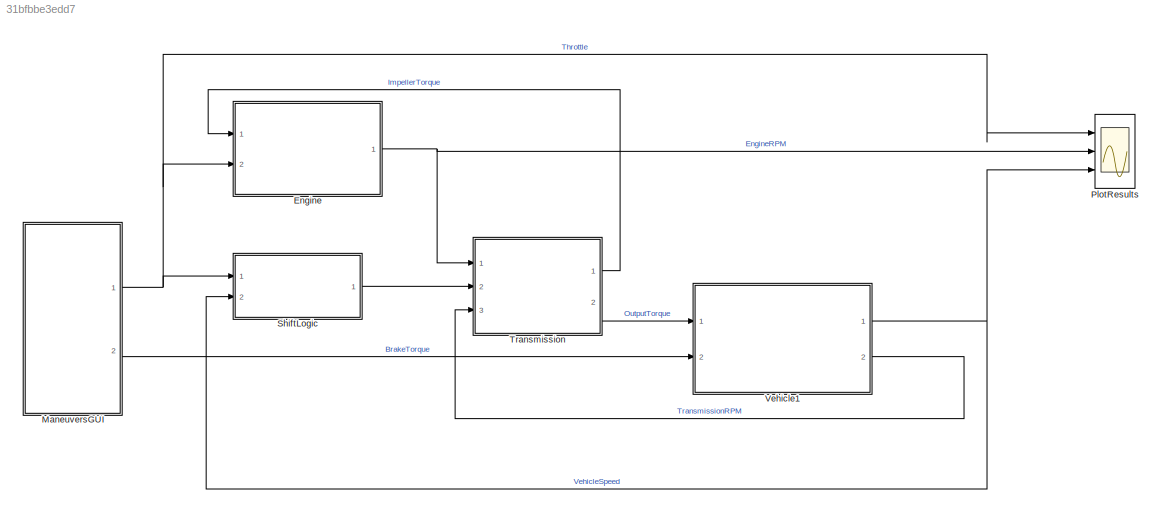
MODEL slx_31bfbbe3edd7
KIND model
CONFIG AbsTol = auto
CONFIG EnableMultiTasking = off
CONFIG FixedStep = auto
CONFIG MaxStep = auto
CONFIG MinStep = auto
CONFIG RelTol = 1e-3
CONFIG SampleTimeConstraint = Unconstrained
CONFIG SolverName = ode5
CONFIG StartTime = 0.0
CONFIG StopTime = 30
WORKSPACE source: mxarray member
WORKSPACE CONVERTER_DATA = [0 0.1 0.2 0.3 0.4 0.5 0.6 0.7 0.8 0.81 0.82 0.83 ... (63 elements, 21x3)]
WORKSPACE DOWN_TABLE = [0 0 0 0 0 0 5 5 5 5 30 30 ... (24 elements, 6x4)]
WORKSPACE DOWN_TH_BP = [0 5 40 50 90 100]
WORKSPACE EMAP = [-40 215 245 264 264 267 267 267 267 267 -44 117 ... (110 elements, 10x11)]
WORKSPACE Iei = 0.0219914882836
WORKSPACE NE_VEC = [800 1200 1600 2000 2400 2800 3200 3600 4000 4400 4800]
WORKSPACE TH_VEC = [0 20 30 40 50 60 70 80 90 100]
WORKSPACE TWAIT = 2
WORKSPACE UP_TABLE = [10 10 15 23 40 40 30 30 30 41 70 70 ... (24 elements, 6x4)]
WORKSPACE UP_TH_BP = [0 25 35 50 90 100]
WORKSPACE VEHICLE_DATA = [3.23 40 0.02 1 12.0941478573 0]
BLOCK [SubSystem] Engine
  Ports = [2, 1]
  RequestExecContextInheritance = off
BLOCK [Sum] Engine/Add
  IconShape = rectangular
  Inputs = -+
  Ports = [2, 1]
BLOCK [Lookup_n-D] Engine/Engine Torque
  BreakpointsForDimension1 = TH_VEC
  BreakpointsForDimension2 = NE_VEC
  InputPortMap = u0,u1
  Ports = [2, 1]
  Table = EMAP
BLOCK [Gain] Engine/EnginePlusImpellerInertia
  Gain = 1/Iei
BLOCK [Integrator] Engine/Integrator
  InitialCondition = 1000
  LimitOutput = on
  LowerSaturationLimit = 600
  Ports = [1, 1]
  UpperSaturationLimit = 6000
  ZeroCross = off
BLOCK [Outport] Engine/Ne
BLOCK [Inport] Engine/Throttle
  Port = 2
BLOCK [Inport] Engine/Ti
BLOCK [SubSystem] ManeuversGUI
  ClipboardFcn = sigbuilder_block('clipboard');
  CloseFcn = sigbuilder_block('close');
  ContinueFcn = sigbuilder_block('continue');
  CopyFcn = sigbuilder_block('copy');
  DeleteFcn = sigbuilder_block('delete');
  LoadFcn = sigbuilder_block('load');
  MaskHideContents = on
  ModelCloseFcn = sigbuilder_block('modelClose');
  NameChangeFcn = sigbuilder_block('namechange');
  OpenFcn = sigbuilder_block('open',[0 30 1024.5 488.25 ]);
  PauseFcn = sigbuilder_block('pause');
  Ports = [0, 2]
  PreSaveFcn = sigbuilder_block('preSave');
  RequestExecContextInheritance = off
  StartFcn = sigbuilder_block('start');
  StopFcn = sigbuilder_block('stop');
  Tag = STV Subsys
BLOCK [Outport] ManeuversGUI/Brake
  Port = 2
  Tag = STV Outport
BLOCK [Demux] ManeuversGUI/Demux
  DisplayOption = none
  Outputs = 2
  Ports = [1, 2]
  Tag = STV Demux
BLOCK [FromWorkspace] ManeuversGUI/FromWs
  Tag = STV FromWs
  VariableName = tuvar
BLOCK [Outport] ManeuversGUI/Throttle
  Tag = STV Outport
BLOCK [Scope] PlotResults
  Floating = off
  NumInputPorts = 3
  Ports = [3]
  ScopeSpecificationString = Simulink.scopes.TimeScopeBlockCfg('CurrentConfiguration', extmgr.ConfigurationSet(extmgr.Configuration('Core','General UI',true),extmgr.Configuration('Core','Source UI',true),extmgr.Configuration('Sources','WiredSimulink',true),extmgr.Configuration('Visuals','Time Domain',true,'SerializedDisplays',{struct('MinYLimReal','-6.25','MaxYLimReal','56.25','YLabelReal','','MinYLimMag','0.00000','MaxYLimMa...<+2745ch>
BLOCK [SubSystem] ShiftLogic
  ErrorFcn = Stateflow.Translate.translate
  PermitHierarchicalResolution = ExplicitOnly
  Ports = [2, 1]
  RequestExecContextInheritance = off
  SFBlockType = Chart
  TreatAsAtomicUnit = on
BLOCK [Demux] ShiftLogic/ Demux 
  Outputs = 1
  Ports = [1, 1]
BLOCK [S-Function] ShiftLogic/ SFunction 
  EnableBusSupport = on
  FunctionName = sf_sfun
  Parameters = TWAIT
  PortCounts = [4 4]
  Ports = [4, 4]
  SFcnIsStateOwnerBlock = off
  SFunctionDeploymentMode = off
  Tag = Stateflow S-Function 1
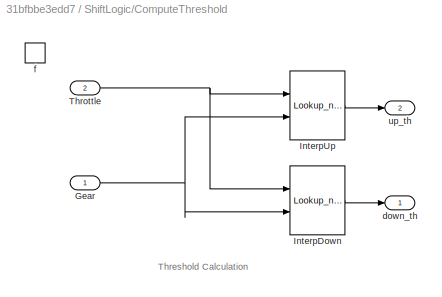
BLOCK [SubSystem] ShiftLogic/ComputeThreshold
  Ports = [2, 2, 0, 1]
  PreDeleteFcn = Stateflow.SLINSF.SimulinkMan.removePreDeleteFcn
  RequestExecContextInheritance = off
  UndoDeleteFcn = Stateflow.SLINSF.SimulinkMan.restorePreDeleteFcn
BLOCK [Inport] ShiftLogic/ComputeThreshold/Gear
BLOCK [Lookup_n-D] ShiftLogic/ComputeThreshold/InterpDown
  BreakpointsForDimension1 = DOWN_TH_BP
  BreakpointsForDimension2 = [1:4]
  InputPortMap = u0,u1
  InputSameDT = off
  LockScale = on
  OutDataTypeStr = double
  Ports = [2, 1]
  Table = DOWN_TABLE
BLOCK [Lookup_n-D] ShiftLogic/ComputeThreshold/InterpUp
  BreakpointsForDimension1 = UP_TH_BP
  BreakpointsForDimension2 = [1:4]
  InputPortMap = u0,u1
  InputSameDT = off
  LockScale = on
  OutDataTypeStr = double
  Ports = [2, 1]
  Table = UP_TABLE
BLOCK [Inport] ShiftLogic/ComputeThreshold/Throttle
  Port = 2
BLOCK [Outport] ShiftLogic/ComputeThreshold/down_th
  InitialOutput = 0
  VectorParamsAs1DForOutWhenUnconnected = off
BLOCK [TriggerPort] ShiftLogic/ComputeThreshold/f
  CopyFcn = Stateflow.SLINSF.SimulinkMan.removeBlockPreDeleteFcn
  Ports = []
  PreDeleteFcn = Stateflow.SLINSF.SimulinkMan.unsafePredeleteFcn
  StatesWhenEnabling = held
  TriggerType = function-call
  VariantControl = (inherit)
BLOCK [Outport] ShiftLogic/ComputeThreshold/up_th
  InitialOutput = 0
  Port = 2
  VectorParamsAs1DForOutWhenUnconnected = off
BLOCK [Outport] ShiftLogic/Gear
  VectorParamsAs1DForOutWhenUnconnected = off
BLOCK [Inport] ShiftLogic/Throttle
BLOCK [Inport] ShiftLogic/VehicleSpeed
  Port = 2
BLOCK [SubSystem] Transmission
  Ports = [3, 2]
  RequestExecContextInheritance = off
BLOCK [Inport] Transmission/Gear
  Port = 2
BLOCK [Inport] Transmission/Ne
BLOCK [Inport] Transmission/Nout
  Port = 3
BLOCK [Outport] Transmission/Ti
BLOCK [SubSystem] Transmission/TorqueConverter1
  Ports = [2, 2]
  RequestExecContextInheritance = off
  ShowPortLabels = none
BLOCK [Lookup_n-D] Transmission/TorqueConverter1/FactorK
  BreakpointsForDimension1 = speedratio
  InputPortMap = u0
  NumberOfTableDimensions = 1
  Ports = [1, 1]
  SaturateOnIntegerOverflow = on
  Table = Kfactor
BLOCK [Fcn] Transmission/TorqueConverter1/Impeller
  Expr = u^2
BLOCK [Inport] Transmission/TorqueConverter1/Ne
BLOCK [Inport] Transmission/TorqueConverter1/Nin
  Port = 2
BLOCK [Product] Transmission/TorqueConverter1/Quotient
  InputSameDT = on
  Inputs = */
  OutDataTypeStr = Inherit: Same as first input
  Ports = [2, 1]
  SaturateOnIntegerOverflow = on
BLOCK [Product] Transmission/TorqueConverter1/SpeedRatio
  InputSameDT = on
  Inputs = */
  OutDataTypeStr = Inherit: Same as first input
  Ports = [2, 1]
  SaturateOnIntegerOverflow = on
BLOCK [Outport] Transmission/TorqueConverter1/Ti
  VectorParamsAs1DForOutWhenUnconnected = off
BLOCK [Lookup_n-D] Transmission/TorqueConverter1/TorqueRatio
  BreakpointsForDimension1 = speedratio
  InputPortMap = u0
  NumberOfTableDimensions = 1
  Ports = [1, 1]
  SaturateOnIntegerOverflow = on
  Table = Torkratio
BLOCK [Outport] Transmission/TorqueConverter1/Tt
  Port = 2
  VectorParamsAs1DForOutWhenUnconnected = off
BLOCK [Product] Transmission/TorqueConverter1/Turbine
  InputSameDT = on
  OutDataTypeStr = Inherit: Same as first input
  Ports = [2, 1]
  SaturateOnIntegerOverflow = on
BLOCK [Outport] Transmission/Tout
  Port = 2
BLOCK [SubSystem] Transmission/TransmissionRatio
  Ports = [3, 2]
  RequestExecContextInheritance = off
BLOCK [Lookup_n-D] Transmission/TransmissionRatio/1-D Lookup Table
  BreakpointsForDimension1 = [1 2 3 4]
  ExtrapMethod = Clip
  InputPortMap = u0
  NumberOfTableDimensions = 1
  Ports = [1, 1]
  SaturateOnIntegerOverflow = on
  Table = [2.393 1.450 1.000 0.677]
BLOCK [Inport] Transmission/TransmissionRatio/Gear
  Port = 2
BLOCK [Outport] Transmission/TransmissionRatio/Nin
  Port = 2
BLOCK [Inport] Transmission/TransmissionRatio/Nout
  Port = 3
BLOCK [Product] Transmission/TransmissionRatio/Product
  Ports = [2, 1]
  SaturateOnIntegerOverflow = on
BLOCK [Product] Transmission/TransmissionRatio/Product1
  Ports = [2, 1]
  SaturateOnIntegerOverflow = on
BLOCK [Inport] Transmission/TransmissionRatio/Tin
BLOCK [Outport] Transmission/TransmissionRatio/Tout
  LockScale = on
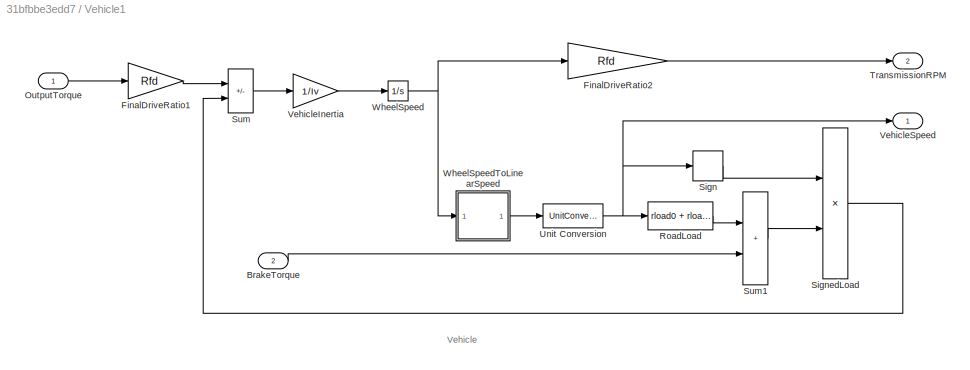
BLOCK [SubSystem] Vehicle1
  Ports = [2, 2]
  RequestExecContextInheritance = off
  ShowPortLabels = none
BLOCK [Inport] Vehicle1/BrakeTorque
  Port = 2
  Unit = ft*lbf@torque
BLOCK [Gain] Vehicle1/FinalDriveRatio1
  Gain = Rfd
  OutDataTypeStr = Inherit: Same as input
  ParamDataTypeStr = Inherit: Same as input
  SaturateOnIntegerOverflow = on
BLOCK [Gain] Vehicle1/FinalDriveRatio2
  Gain = Rfd
  OutDataTypeStr = Inherit: Same as input
  ParamDataTypeStr = Inherit: Same as input
  SaturateOnIntegerOverflow = on
BLOCK [Inport] Vehicle1/OutputTorque
  Unit = ft*lbf@torque
BLOCK [Fcn] Vehicle1/RoadLoad
  Expr = rload0 + rload2*u^2
BLOCK [Signum] Vehicle1/Sign
BLOCK [Product] Vehicle1/SignedLoad
  InputSameDT = on
  OutDataTypeStr = Inherit: Same as first input
  Ports = [2, 1]
  SaturateOnIntegerOverflow = on
BLOCK [Sum] Vehicle1/Sum
  IconShape = rectangular
  InputSameDT = on
  Inputs = +-
  OutDataTypeStr = Inherit: Same as first input
  Ports = [2, 1]
  SaturateOnIntegerOverflow = on
BLOCK [Sum] Vehicle1/Sum1
  IconShape = rectangular
  InputSameDT = on
  OutDataTypeStr = Inherit: Same as first input
  Ports = [2, 1]
  SaturateOnIntegerOverflow = on
BLOCK [Outport] Vehicle1/TransmissionRPM
  Port = 2
  Unit = rpm
  VectorParamsAs1DForOutWhenUnconnected = off
BLOCK [UnitConversion] Vehicle1/Unit Conversion
BLOCK [Gain] Vehicle1/VehicleInertia
  Gain = 1/Iv
  OutDataTypeStr = Inherit: Same as input
  ParamDataTypeStr = Inherit: Same as input
  SaturateOnIntegerOverflow = on
BLOCK [Outport] Vehicle1/VehicleSpeed
  Unit = mph
  VectorParamsAs1DForOutWhenUnconnected = off
BLOCK [Integrator] Vehicle1/WheelSpeed
  InitialCondition = N20/Rfd
  Ports = [1, 1]
  ZeroCross = off
BLOCK [SubSystem] Vehicle1/WheelSpeedToLinearSpeed
  Ports = [1, 1]
  RequestExecContextInheritance = off
BLOCK [Outport] Vehicle1/WheelSpeedToLinearSpeed/LS
  Unit = ft/min
  VectorParamsAs1DForOutWhenUnconnected = off
BLOCK [Gain] Vehicle1/WheelSpeedToLinearSpeed/ToLinearSpeed
  Gain = 2*pi*Rw
  OutDataTypeStr = Inherit: Same as input
  ParamDataTypeStr = Inherit: Same as input
  SaturateOnIntegerOverflow = on
BLOCK [Inport] Vehicle1/WheelSpeedToLinearSpeed/WS
  Unit = rpm
ANNOTATION Engine: Engine
ANNOTATION ShiftLogic/ComputeThreshold: Threshold Calculation
ANNOTATION Transmission: Transmission
ANNOTATION Transmission: Torque Converter
ANNOTATION Transmission/TorqueConverter1: Torque Converter
ANNOTATION Transmission/TransmissionRatio: Transmission Gear Ratio
ANNOTATION Vehicle1: Vehicle
LINE Engine/Add:1 -> Engine/EnginePlusImpellerInertia:1
LINE Engine/Engine Torque:1 -> Engine/Add:2
LINE Engine/EnginePlusImpellerInertia:1 -> Engine/Integrator:1
NET Engine/Integrator:1 -> Engine/Engine Torque:2, Engine/Ne:1
LINE Engine/Throttle:1 -> Engine/Engine Torque:1
LINE Engine/Ti:1 -> Engine/Add:1
NET Engine:1 -> PlotResults:2, Transmission:1
NET ManeuversGUI:1 -> Engine:2, PlotResults:1, ShiftLogic:1
LINE ManeuversGUI:2 -> Vehicle1:2
LINE ShiftLogic:1 -> Transmission:2
LINE Transmission/Gear:1 -> Transmission/TransmissionRatio:2
LINE Transmission/Ne:1 -> Transmission/TorqueConverter1:1
LINE Transmission/Nout:1 -> Transmission/TransmissionRatio:3
LINE Transmission/TorqueConverter1/FactorK:1 -> Transmission/TorqueConverter1/Quotient:2
NET Transmission/TorqueConverter1/Impeller:1 -> Transmission/TorqueConverter1/Ti:1, Transmission/TorqueConverter1/Turbine:1
NET Transmission/TorqueConverter1/Ne:1 -> Transmission/TorqueConverter1/Quotient:1, Transmission/TorqueConverter1/SpeedRatio:2
LINE Transmission/TorqueConverter1/Nin:1 -> Transmission/TorqueConverter1/SpeedRatio:1
LINE Transmission/TorqueConverter1/Quotient:1 -> Transmission/TorqueConverter1/Impeller:1
NET Transmission/TorqueConverter1/SpeedRatio:1 -> Transmission/TorqueConverter1/FactorK:1, Transmission/TorqueConverter1/TorqueRatio:1
LINE Transmission/TorqueConverter1/TorqueRatio:1 -> Transmission/TorqueConverter1/Turbine:2
LINE Transmission/TorqueConverter1/Turbine:1 -> Transmission/TorqueConverter1/Tt:1
LINE Transmission/TorqueConverter1:1 -> Transmission/Ti:1
LINE Transmission/TorqueConverter1:2 -> Transmission/TransmissionRatio:1
NET Transmission/TransmissionRatio/1-D Lookup Table:1 -> Transmission/TransmissionRatio/Product1:1, Transmission/TransmissionRatio/Product:2
LINE Transmission/TransmissionRatio/Gear:1 -> Transmission/TransmissionRatio/1-D Lookup Table:1
LINE Transmission/TransmissionRatio/Nout:1 -> Transmission/TransmissionRatio/Product1:2
LINE Transmission/TransmissionRatio/Product1:1 -> Transmission/TransmissionRatio/Nin:1
LINE Transmission/TransmissionRatio/Product:1 -> Transmission/TransmissionRatio/Tout:1
LINE Transmission/TransmissionRatio/Tin:1 -> Transmission/TransmissionRatio/Product:1
LINE Transmission/TransmissionRatio:1 -> Transmission/Tout:1
LINE Transmission/TransmissionRatio:2 -> Transmission/TorqueConverter1:2
LINE Transmission:1 -> Engine:1
LINE Transmission:2 -> Vehicle1:1
LINE Vehicle1/BrakeTorque:1 -> Vehicle1/Sum1:2
LINE Vehicle1/FinalDriveRatio1:1 -> Vehicle1/Sum:1
LINE Vehicle1/FinalDriveRatio2:1 -> Vehicle1/TransmissionRPM:1
LINE Vehicle1/OutputTorque:1 -> Vehicle1/FinalDriveRatio1:1
LINE Vehicle1/RoadLoad:1 -> Vehicle1/Sum1:1
LINE Vehicle1/Sign:1 -> Vehicle1/SignedLoad:1
LINE Vehicle1/SignedLoad:1 -> Vehicle1/Sum:2
LINE Vehicle1/Sum1:1 -> Vehicle1/SignedLoad:2
LINE Vehicle1/Sum:1 -> Vehicle1/VehicleInertia:1
NET Vehicle1/Unit Conversion:1 -> Vehicle1/RoadLoad:1, Vehicle1/Sign:1, Vehicle1/VehicleSpeed:1
LINE Vehicle1/VehicleInertia:1 -> Vehicle1/WheelSpeed:1
NET Vehicle1/WheelSpeed:1 -> Vehicle1/FinalDriveRatio2:1, Vehicle1/WheelSpeedToLinearSpeed:1
LINE Vehicle1/WheelSpeedToLinearSpeed/ToLinearSpeed:1 -> Vehicle1/WheelSpeedToLinearSpeed/LS:1
LINE Vehicle1/WheelSpeedToLinearSpeed/WS:1 -> Vehicle1/WheelSpeedToLinearSpeed/ToLinearSpeed:1
LINE Vehicle1/WheelSpeedToLinearSpeed:1 -> Vehicle1/Unit Conversion:1
NET Vehicle1:1 -> PlotResults:3, ShiftLogic:2
LINE Vehicle1:2 -> Transmission:3
note: NET lines group one-source signal fan-out (src -> all destinations, sorted); 1:1 wires keep LINE
CHART ShiftLogic states=10 transitions=14
  STATE_LABEL 'gear_state'
  STATE_LABEL 'first\nentry:\nGear = 1;'
  STATE_LABEL 'second\nentry:\nGear = 2;'
  STATE_LABEL 'third\nentry:\nGear = 3;'
  STATE_LABEL 'fourth\nentry:\nGear = 4;'
  STATE_LABEL 'UP'
  STATE_LABEL 'UP'
  STATE_LABEL 'UP'
  STATE_LABEL 'DOWN'
  STATE_LABEL 'DOWN'
  STATE_LABEL 'DOWN'
  STATE_LABEL 'first\nentry:\nGear = 1;'
  STATE_LABEL 'second\nentry:\nGear = 2;'
  STATE_LABEL 'third\nentry:\nGear = 3;'
  STATE_LABEL 'fourth\nentry:\nGear = 4;'
  STATE_LABEL 'selection_state\nduring:\n[down_th, up_th] = ComputeThreshold(Gear,Throttle);'
  STATE_LABEL 'steady_state'
  STATE_LABEL 'upshifting'
  STATE_LABEL 'downshifting'
  STATE_LABEL '[VehicleSpeed > up_th]'
  STATE_LABEL '[VehicleSpeed < down_th]'
  STATE_LABEL '[VehicleSpeed > down_th]'
  STATE_LABEL 'after(TWAIT,tick)\n[VehicleSpeed <= down_th]\n{gear_state.DOWN}'
  STATE_LABEL 'after(TWAIT,tick)\n[VehicleSpeed >= up_th]\n{gear_state.UP}'
  STATE_LABEL '[VehicleSpeed < up_th]'
  STATE_LABEL 'steady_state'
  STATE_LABEL 'upshifting'
  STATE_LABEL 'downshifting'
  STATE_LABEL '[down_th,up_th] = ComputeThreshold(Gear,Throttle)'
CHART  states=0 transitions=0
